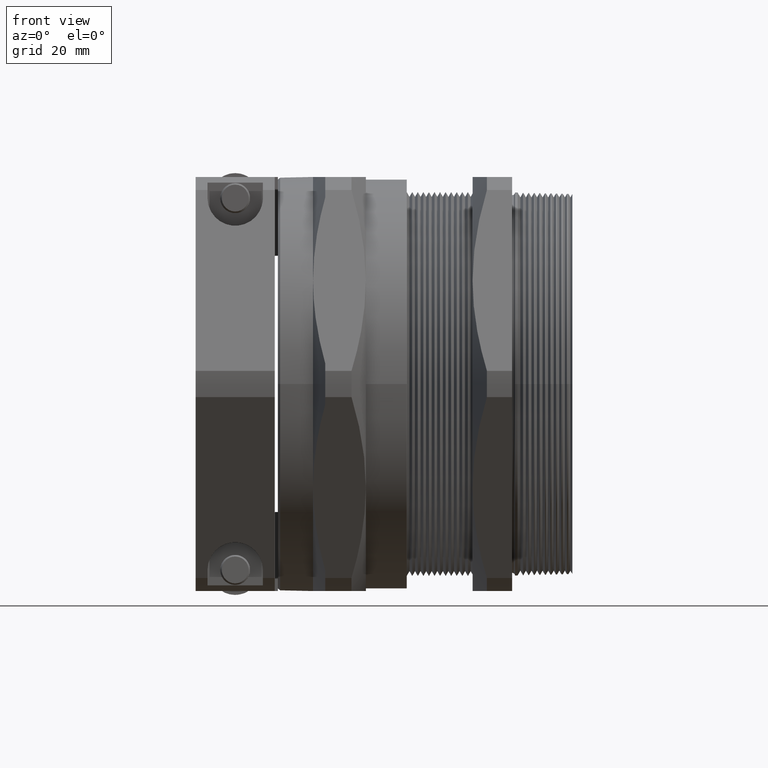
[diagram: clean part render]
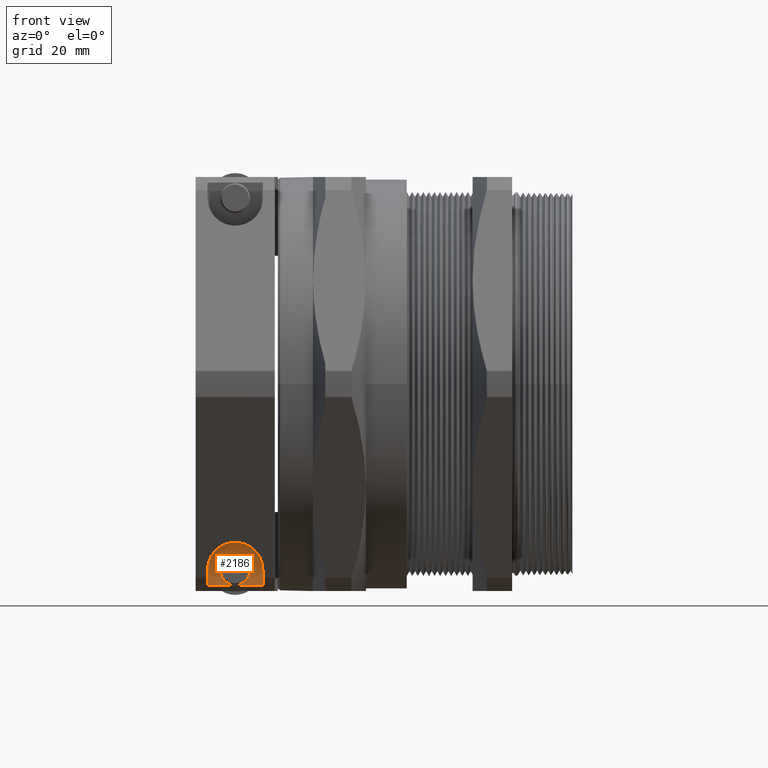
[diagram: same view with one face highlighted and labeled with its STEP entity id]
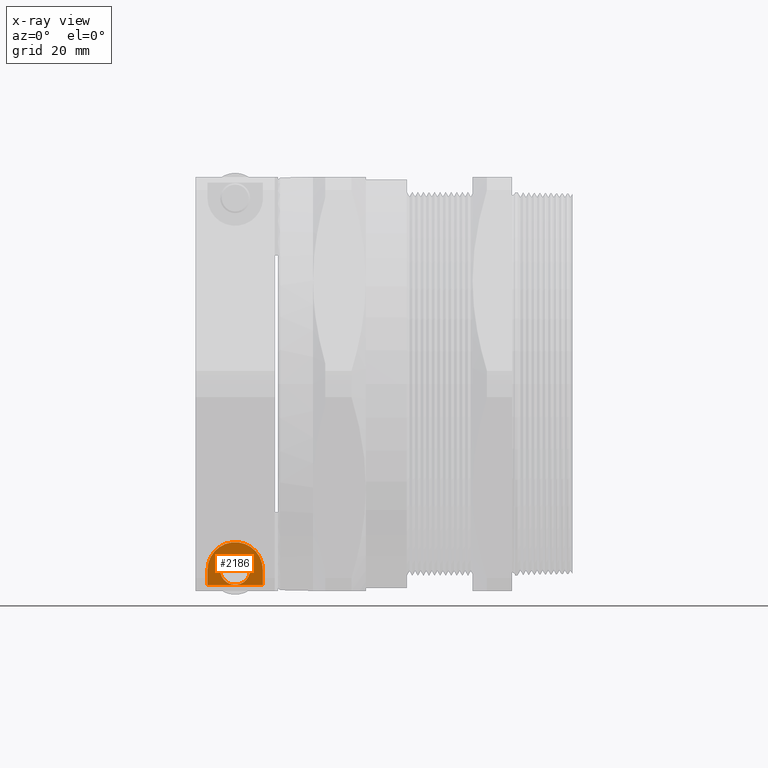
[diagram: x-ray of the same camera — body ghosted, the highlighted face saturated]
A machine part, front view. The second image highlights one B-rep face of the part: STEP entity #2186.
The next image is the same camera in x-ray: the body ghosted, the highlighted face saturated — about 0% of this face is hidden behind the body in this view.
In plain terms, the highlighted planar face has unit normal (0, -1, 0).
Its self-contained STEP definition (entity closure, byte-faithful):
#181 = VERTEX_POINT ( 'NONE', #3602 ) ;
#183 = EDGE_CURVE ( 'NONE', #181, #184, #3600, .T. ) ;
#184 = VERTEX_POINT ( 'NONE', #3654 ) ;
#2061 = VERTEX_POINT ( 'NONE', #7052 ) ;
#2063 = EDGE_CURVE ( 'NONE', #2061, #2064, #7051, .T. ) ;
#2064 = VERTEX_POINT ( 'NONE', #7047 ) ;
#2162 = ORIENTED_EDGE ( 'NONE', *, *, #2163, .F. ) ;
#2163 = EDGE_CURVE ( 'NONE', #184, #181, #7164, .T. ) ;
#2164 = ORIENTED_EDGE ( 'NONE', *, *, #183, .F. ) ;
#2165 = EDGE_LOOP ( 'NONE', ( #2166, #2167, #2170, #2173 ) ) ;
#2166 = ORIENTED_EDGE ( 'NONE', *, *, #2063, .F. ) ;
#2167 = ORIENTED_EDGE ( 'NONE', *, *, #2168, .T. ) ;
#2168 = EDGE_CURVE ( 'NONE', #2061, #2169, #7159, .T. ) ;
#2169 = VERTEX_POINT ( 'NONE', #7221 ) ;
#2170 = ORIENTED_EDGE ( 'NONE', *, *, #2171, .T. ) ;
#2171 = EDGE_CURVE ( 'NONE', #2169, #2172, #7220, .T. ) ;
#2172 = VERTEX_POINT ( 'NONE', #7215 ) ;
#2173 = ORIENTED_EDGE ( 'NONE', *, *, #2174, .T. ) ;
#2174 = EDGE_CURVE ( 'NONE', #2172, #2064, #7214, .T. ) ;
#2186 = ADVANCED_FACE ( 'NONE', ( #7204, #7203 ), #7202, .T. ) ;
#2187 = EDGE_LOOP ( 'NONE', ( #2162, #2164 ) ) ;
#3596 = DIRECTION ( 'NONE',  ( 0.0000000000000000000, 0.0000000000000000000, -1.000000000000000000 ) ) ;
#3597 = DIRECTION ( 'NONE',  ( 0.0000000000000000000, -1.000000000000000000, 0.0000000000000000000 ) ) ;
#3598 = CARTESIAN_POINT ( 'NONE',  ( -1.229499999999999800, -0.7439999999999999900, -1.203333333333333100 ) ) ;
#3599 = AXIS2_PLACEMENT_3D ( 'NONE', #3598, #3597, #3596 ) ;
#3600 = CIRCLE ( 'NONE', #3599, 0.09686250000000006000 ) ;
#3602 = CARTESIAN_POINT ( 'NONE',  ( -1.132637499999999700, -0.7439999999999999900, -1.203333333333333100 ) ) ;
#3654 = CARTESIAN_POINT ( 'NONE',  ( -1.326362499999999900, -0.7439999999999999900, -1.203333333333333100 ) ) ;
#7047 = CARTESIAN_POINT ( 'NONE',  ( -1.408874999999999700, -0.7439999999999999900, -1.303405017636498000 ) ) ;
#7048 = DIRECTION ( 'NONE',  ( -1.000000000000000000, 3.248221276105107800E-019, 0.0000000000000000000 ) ) ;
#7049 = VECTOR ( 'NONE', #7048, 39.37007874015748100 ) ;
#7050 = CARTESIAN_POINT ( 'NONE',  ( -3.208270676691729500, -0.7439999999999999900, -1.303405017636498000 ) ) ;
#7051 = LINE ( 'NONE', #7050, #7049 ) ;
#7052 = CARTESIAN_POINT ( 'NONE',  ( -1.050124999999999800, -0.7439999999999999900, -1.303405017636498000 ) ) ;
#7158 = CARTESIAN_POINT ( 'NONE',  ( -1.050125000000000000, -0.7439999999999999900, -1.203333333333333100 ) ) ;
#7159 = LINE ( 'NONE', #7158, #7223 ) ;
#7160 = DIRECTION ( 'NONE',  ( 0.0000000000000000000, 0.0000000000000000000, -1.000000000000000000 ) ) ;
#7161 = DIRECTION ( 'NONE',  ( 0.0000000000000000000, -1.000000000000000000, 0.0000000000000000000 ) ) ;
#7162 = CARTESIAN_POINT ( 'NONE',  ( -1.229499999999999800, -0.7439999999999999900, -1.203333333333333100 ) ) ;
#7163 = AXIS2_PLACEMENT_3D ( 'NONE', #7162, #7161, #7160 ) ;
#7164 = CIRCLE ( 'NONE', #7163, 0.09686250000000006000 ) ;
#7198 = DIRECTION ( 'NONE',  ( 0.0000000000000000000, 0.0000000000000000000, 1.000000000000000000 ) ) ;
#7199 = DIRECTION ( 'NONE',  ( 0.0000000000000000000, -1.000000000000000000, 0.0000000000000000000 ) ) ;
#7200 = CARTESIAN_POINT ( 'NONE',  ( -1.229499999999999800, -0.7439999999999999900, -1.203333333333333100 ) ) ;
#7201 = AXIS2_PLACEMENT_3D ( 'NONE', #7200, #7199, #7198 ) ;
#7202 = PLANE ( 'NONE',  #7201 ) ;
#7203 = FACE_OUTER_BOUND ( 'NONE', #2165, .T. ) ;
#7204 = FACE_BOUND ( 'NONE', #2187, .T. ) ;
#7211 = DIRECTION ( 'NONE',  ( 1.998913166095802500E-015, 0.0000000000000000000, -1.000000000000000000 ) ) ;
#7212 = VECTOR ( 'NONE', #7211, 39.37007874015748100 ) ;
#7213 = CARTESIAN_POINT ( 'NONE',  ( -1.408874999999999900, -0.7439999999999999900, -1.203333333333333100 ) ) ;
#7214 = LINE ( 'NONE', #7213, #7212 ) ;
#7215 = CARTESIAN_POINT ( 'NONE',  ( -1.408874999999999900, -0.7439999999999999900, -1.203333333333333100 ) ) ;
#7216 = DIRECTION ( 'NONE',  ( 0.0000000000000000000, 0.0000000000000000000, 1.000000000000000000 ) ) ;
#7217 = DIRECTION ( 'NONE',  ( 0.0000000000000000000, -1.000000000000000000, 0.0000000000000000000 ) ) ;
#7218 = CARTESIAN_POINT ( 'NONE',  ( -1.229499999999999800, -0.7439999999999999900, -1.203333333333333100 ) ) ;
#7219 = AXIS2_PLACEMENT_3D ( 'NONE', #7218, #7217, #7216 ) ;
#7220 = CIRCLE ( 'NONE', #7219, 0.1793750000000000600 ) ;
#7221 = CARTESIAN_POINT ( 'NONE',  ( -1.050125000000000000, -0.7439999999999999900, -1.203333333333333100 ) ) ;
#7222 = DIRECTION ( 'NONE',  ( 1.998913166095802500E-015, 0.0000000000000000000, 1.000000000000000000 ) ) ;
#7223 = VECTOR ( 'NONE', #7222, 39.37007874015748100 ) ;